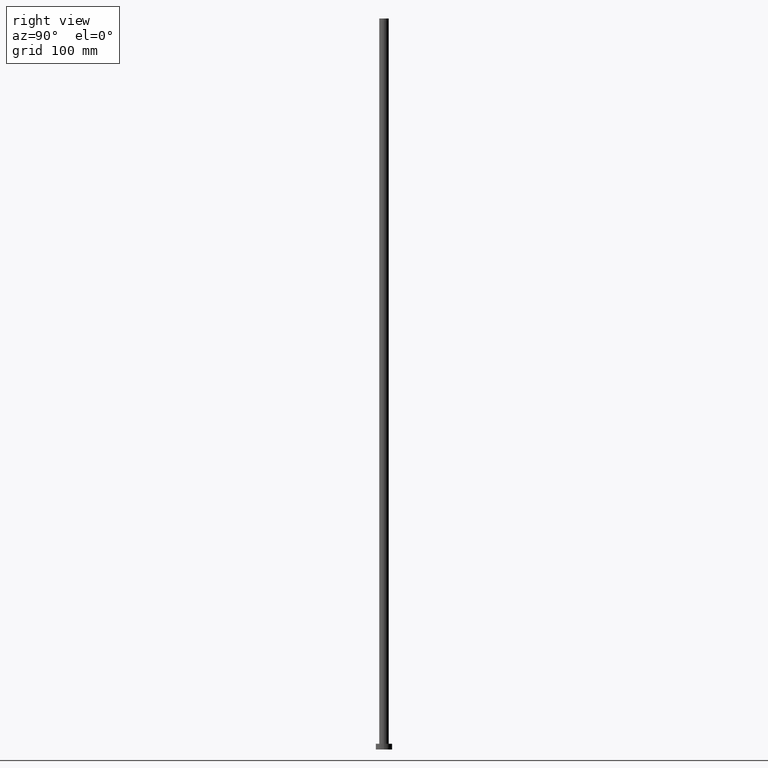
[diagram: clean part render]
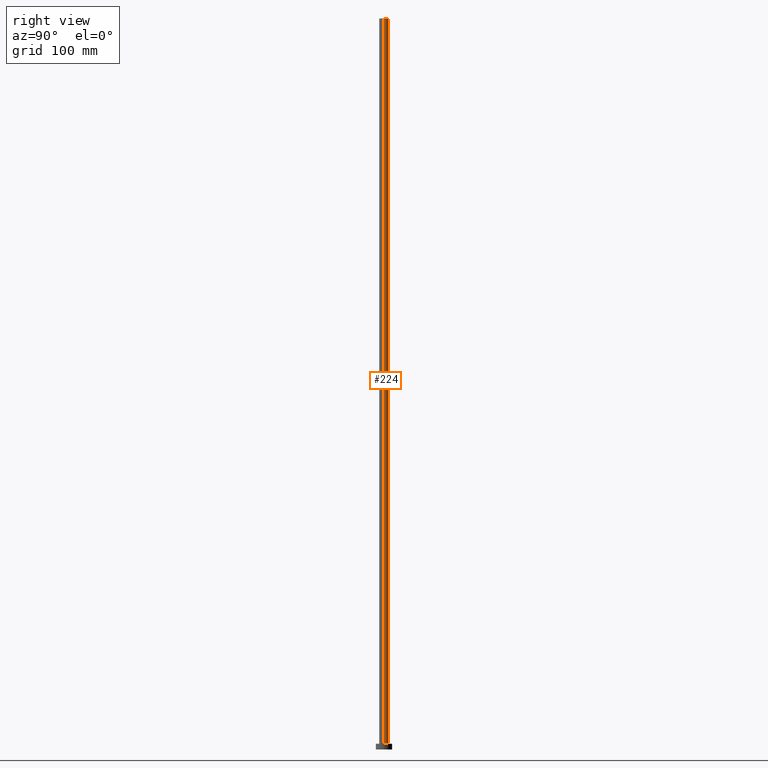
[diagram: same view with one face highlighted and labeled with its STEP entity id]
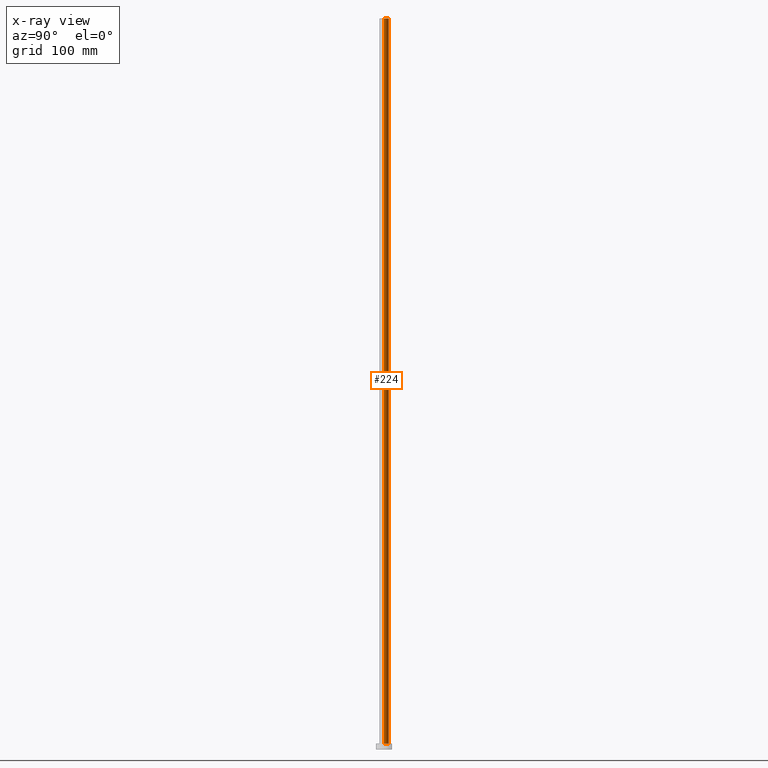
[diagram: x-ray of the same camera — body ghosted, the highlighted face saturated]
A machine part, right view. The second image highlights one B-rep face of the part: STEP entity #224.
The next image is the same camera in x-ray: the body ghosted, the highlighted face saturated — about 0% of this face is hidden behind the body in this view.
In plain terms, the highlighted cylindrical surface (edge-blend (fillet) strip) has radius 4.1 mm, axis along (-0, -0, -1).
Its self-contained STEP definition (entity closure, byte-faithful):
#2 = ORIENTED_EDGE ( 'NONE', *, *, #106, .T. ) ;
#4 = AXIS2_PLACEMENT_3D ( 'NONE', #45, #205, #48 ) ;
#10 = CARTESIAN_POINT ( 'NONE',  ( 4.099999999999999645, 5.021051876504147385E-16, 630.0000000000000000 ) ) ;
#16 = CARTESIAN_POINT ( 'NONE',  ( 0.000000000000000000, 0.000000000000000000, 630.0000000000000000 ) ) ;
#23 = EDGE_CURVE ( 'NONE', #37, #67, #159, .T. ) ;
#37 = VERTEX_POINT ( 'NONE', #83 ) ;
#45 = CARTESIAN_POINT ( 'NONE',  ( 0.000000000000000000, 0.000000000000000000, 5.000000000000000000 ) ) ;
#46 = DIRECTION ( 'NONE',  ( -0.000000000000000000, -0.000000000000000000, -1.000000000000000000 ) ) ;
#48 = DIRECTION ( 'NONE',  ( 1.000000000000000000, 0.000000000000000000, 0.000000000000000000 ) ) ;
#61 = CARTESIAN_POINT ( 'NONE',  ( 4.099999999999999645, 5.021051876504147385E-16, 630.0000000000000000 ) ) ;
#66 = CIRCLE ( 'NONE', #75, 4.099999999999999645 ) ;
#67 = VERTEX_POINT ( 'NONE', #117 ) ;
#75 = AXIS2_PLACEMENT_3D ( 'NONE', #16, #89, #165 ) ;
#83 = CARTESIAN_POINT ( 'NONE',  ( -4.099999999999999645, 0.000000000000000000, 630.0000000000000000 ) ) ;
#84 = DIRECTION ( 'NONE',  ( -0.000000000000000000, -0.000000000000000000, -1.000000000000000000 ) ) ;
#87 = LINE ( 'NONE', #10, #177 ) ;
#89 = DIRECTION ( 'NONE',  ( 0.000000000000000000, 0.000000000000000000, 1.000000000000000000 ) ) ;
#100 = CARTESIAN_POINT ( 'NONE',  ( -4.099999999999999645, 0.000000000000000000, 630.0000000000000000 ) ) ;
#102 = FACE_OUTER_BOUND ( 'NONE', #116, .T. ) ;
#106 = EDGE_CURVE ( 'NONE', #133, #67, #143, .T. ) ;
#115 = ORIENTED_EDGE ( 'NONE', *, *, #23, .F. ) ;
#116 = EDGE_LOOP ( 'NONE', ( #210, #166, #2, #115 ) ) ;
#117 = CARTESIAN_POINT ( 'NONE',  ( -4.099999999999999645, 0.000000000000000000, 5.000000000000000000 ) ) ;
#118 = EDGE_CURVE ( 'NONE', #182, #37, #66, .T. ) ;
#121 = DIRECTION ( 'NONE',  ( -1.000000000000000000, 0.000000000000000000, 0.000000000000000000 ) ) ;
#122 = DIRECTION ( 'NONE',  ( -0.000000000000000000, -0.000000000000000000, -1.000000000000000000 ) ) ;
#125 = CARTESIAN_POINT ( 'NONE',  ( 4.099999999999999645, 5.021051876504147385E-16, 5.000000000000000000 ) ) ;
#133 = VERTEX_POINT ( 'NONE', #125 ) ;
#143 = CIRCLE ( 'NONE', #4, 4.099999999999999645 ) ;
#159 = LINE ( 'NONE', #100, #215 ) ;
#165 = DIRECTION ( 'NONE',  ( 1.000000000000000000, 0.000000000000000000, 0.000000000000000000 ) ) ;
#166 = ORIENTED_EDGE ( 'NONE', *, *, #237, .T. ) ;
#171 = AXIS2_PLACEMENT_3D ( 'NONE', #180, #84, #121 ) ;
#177 = VECTOR ( 'NONE', #46, 1000.000000000000000 ) ;
#180 = CARTESIAN_POINT ( 'NONE',  ( 0.000000000000000000, 0.000000000000000000, 630.0000000000000000 ) ) ;
#182 = VERTEX_POINT ( 'NONE', #61 ) ;
#205 = DIRECTION ( 'NONE',  ( 0.000000000000000000, 0.000000000000000000, 1.000000000000000000 ) ) ;
#210 = ORIENTED_EDGE ( 'NONE', *, *, #118, .F. ) ;
#215 = VECTOR ( 'NONE', #122, 1000.000000000000000 ) ;
#224 = ADVANCED_FACE ( 'NONE', ( #102 ), #250, .T. ) ;
#237 = EDGE_CURVE ( 'NONE', #182, #133, #87, .T. ) ;
#250 = CYLINDRICAL_SURFACE ( 'NONE', #171, 4.099999999999999645 ) ;